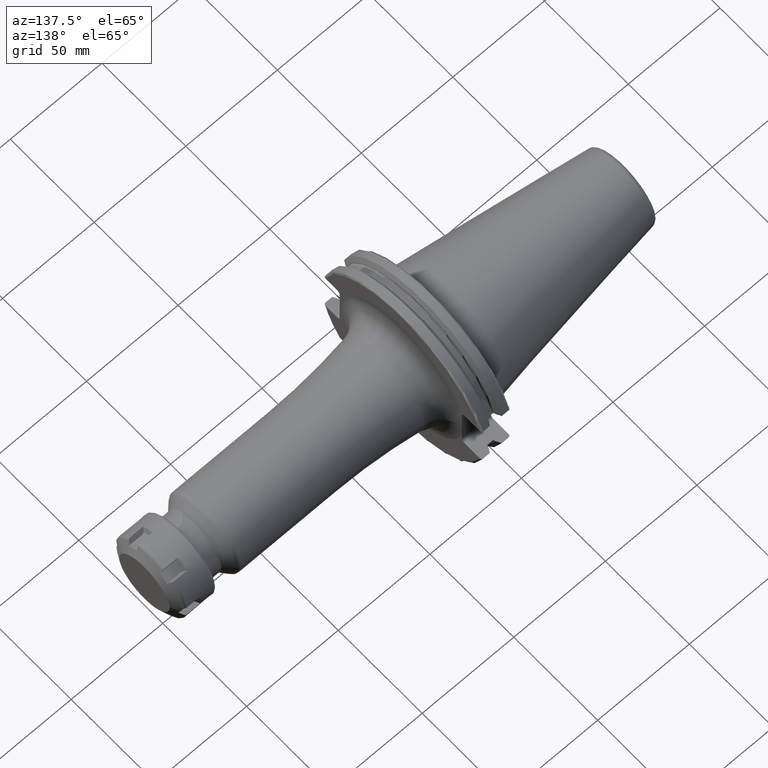
[diagram: clean part render]
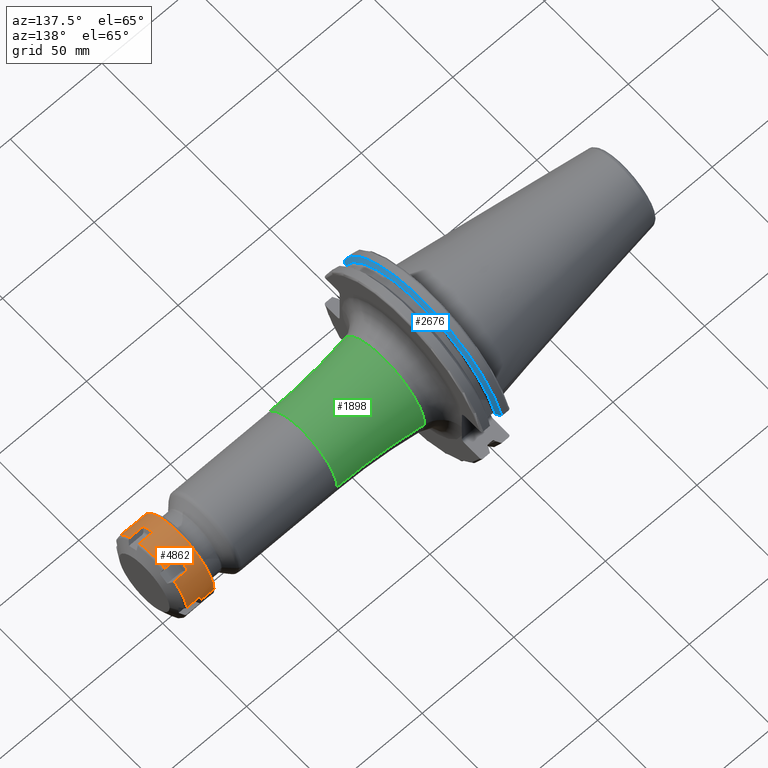
[diagram: same view with three faces highlighted in distinct colors, each labeled with its STEP entity id]
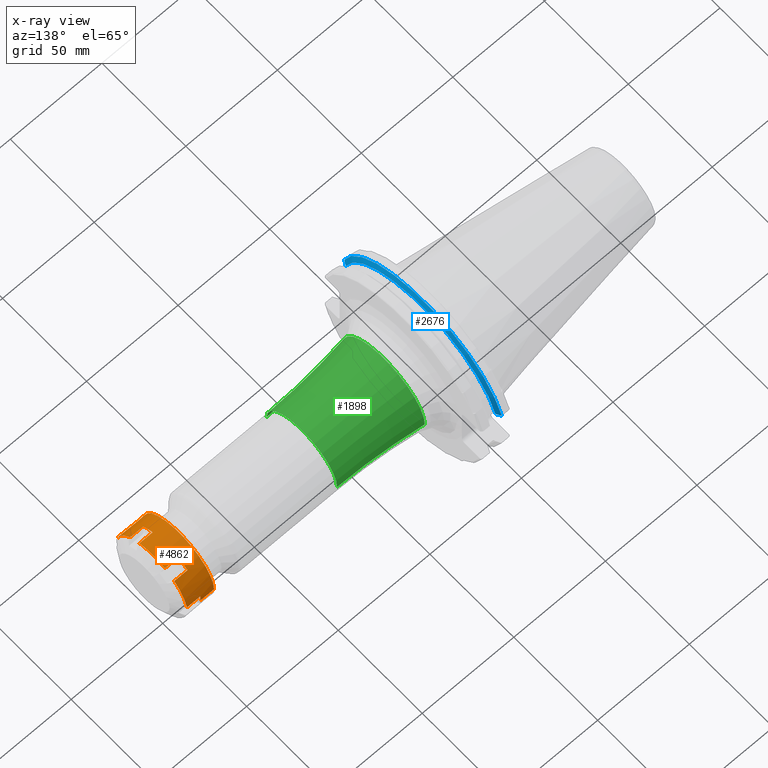
[diagram: x-ray of the same camera — body ghosted, the three highlighted faces saturated]
A machine part, auxiliary view with three faces highlighted in distinct colors.
The next image is the same camera in x-ray (body ghosted, the three faces saturated) — at least one of them is partly hidden behind the body in this view.
Their STEP definitions:

[orange] entity #4862 — the highlighted cylindrical surface (partial cylindrical patch) has radius 21 mm, axis along (1, 0, 0).
#3496=CARTESIAN_POINT('',(1.581421054838E1,1.317189611779E1,1.635546247167E1));
#3513=CARTESIAN_POINT('',(1.581421054838E1,2.075019405E1,3.229465418179E0));
#3515=CARTESIAN_POINT('',(1.581421054838E1,-7.578297932215E0,1.958492788985E1));
#3535=CARTESIAN_POINT('',(1.581421054838E1,7.578297932215E0,1.958492788985E1));
#3537=CARTESIAN_POINT('',(1.581421054838E1,-2.075019405E1,3.229465418179E0));
#3557=CARTESIAN_POINT('',(1.581421054838E1,-1.317189611779E1,1.635546247167E1));
#3630=DIRECTION('',(9.999999999998E-1,-6.709444935676E-7,-9.098410445458E-8));
#3631=VECTOR('',#3630,7.214212575504E0);
#3632=CARTESIAN_POINT('',(8.599997972873E0,1.317190095812E1,1.635546312805E1));
#3633=LINE('',#3632,#3631);
#3646=DIRECTION('',(-1.E0,0.E0,0.E0));
#3647=VECTOR('',#3646,7.214210815093E0);
#3648=CARTESIAN_POINT('',(1.581421054838E1,7.578297932215E0,1.958492788985E1));
#3649=LINE('',#3648,#3647);
#3755=DIRECTION('',(1.E0,0.E0,0.E0));
#3756=VECTOR('',#3755,7.214210548375E0);
#3757=CARTESIAN_POINT('',(8.6E0,-2.075019405E1,3.229465418179E0));
#3758=LINE('',#3757,#3756);
#3796=DIRECTION('',(-1.E0,9.411549393136E-12,6.000804948597E-11));
#3797=VECTOR('',#3796,7.350000000040E0);
#3798=CARTESIAN_POINT('',(8.600000000040E0,2.099999999993E1,
-4.377820052165E-10));
#3799=LINE('',#3798,#3797);
#3805=DIRECTION('',(-1.E0,-9.436200875805E-12,-6.000654573246E-11));
#3806=VECTOR('',#3805,7.350000000040E0);
#3807=CARTESIAN_POINT('',(8.600000000040E0,-2.099999999993E1,
4.377679851591E-10));
#3808=LINE('',#3807,#3806);
#3876=DIRECTION('',(-1.E0,1.969841969528E-14,0.E0));
#3877=VECTOR('',#3876,7.214210548375E0);
#3878=CARTESIAN_POINT('',(1.581421054838E1,2.075019405E1,3.229465418179E0));
#3879=LINE('',#3878,#3877);
#3891=CARTESIAN_POINT('',(8.6E0,0.E0,0.E0));
#3892=DIRECTION('',(-1.E0,0.E0,0.E0));
#3893=DIRECTION('',(0.E0,-1.E0,0.E0));
#3894=AXIS2_PLACEMENT_3D('',#3891,#3892,#3893);
#3896=CARTESIAN_POINT('',(1.25E0,0.E0,0.E0));
#3897=DIRECTION('',(-1.E0,0.E0,0.E0));
#3898=DIRECTION('',(0.E0,-1.E0,0.E0));
#3899=AXIS2_PLACEMENT_3D('',#3896,#3897,#3898);
#3901=CARTESIAN_POINT('',(8.6E0,0.E0,0.E0));
#3902=DIRECTION('',(-1.E0,0.E0,0.E0));
#3903=DIRECTION('',(0.E0,9.881044785716E-1,1.537840675323E-1));
#3904=AXIS2_PLACEMENT_3D('',#3901,#3902,#3903);
#3906=CARTESIAN_POINT('',(1.581421054838E1,-1.792614389339E-14,0.E0));
#3907=DIRECTION('',(-1.E0,0.E0,0.E0));
#3908=DIRECTION('',(0.E0,6.272331484661E-1,7.788315462700E-1));
#3909=AXIS2_PLACEMENT_3D('',#3906,#3907,#3908);
#3911=CARTESIAN_POINT('',(1.581421054838E1,-1.792614389339E-14,0.E0));
#3912=DIRECTION('',(-1.E0,0.E0,0.E0));
#3913=DIRECTION('',(0.E0,-3.608713301055E-1,9.326156138023E-1));
#3914=AXIS2_PLACEMENT_3D('',#3911,#3912,#3913);
#3916=CARTESIAN_POINT('',(1.581421054838E1,-1.792614389339E-14,0.E0));
#3917=DIRECTION('',(-1.E0,0.E0,0.E0));
#3918=DIRECTION('',(0.E0,-9.881044785716E-1,1.537840675323E-1));
#3919=AXIS2_PLACEMENT_3D('',#3916,#3917,#3918);
#3995=CARTESIAN_POINT('',(8.600000222181E0,7.035000558750E-6,
1.879731957107E-6));
#3996=DIRECTION('',(-1.E0,0.E0,0.E0));
#3997=DIRECTION('',(0.E0,3.608710688571E-1,9.326157148911E-1));
#3998=AXIS2_PLACEMENT_3D('',#3995,#3996,#3997);
#4014=DIRECTION('',(9.999999999979E-1,-1.452794314702E-6,1.445246590338E-6));
#4015=VECTOR('',#4014,7.214202484701E0);
#4016=CARTESIAN_POINT('',(8.600008063689E0,-7.578287451463E0,1.958491746355E1));
#4017=LINE('',#4016,#4015);
#4030=DIRECTION('',(-1.E0,0.E0,0.E0));
#4031=VECTOR('',#4030,7.214210890546E0);
#4032=CARTESIAN_POINT('',(1.581421054838E1,-1.317189611779E1,1.635546247167E1));
#4033=LINE('',#4032,#4031);
#4066=CARTESIAN_POINT('',(8.600000318507E0,1.804967964893E-5,
-1.352930521446E-5));
#4067=DIRECTION('',(-1.E0,0.E0,0.E0));
#4068=DIRECTION('',(0.E0,-6.272333551021E-1,7.788313798553E-1));
#4069=AXIS2_PLACEMENT_3D('',#4066,#4067,#4068);
#4153=CARTESIAN_POINT('',(1.25E0,2.1E1,0.E0));
#4154=CARTESIAN_POINT('',(1.25E0,-2.1E1,0.E0));
#4155=VERTEX_POINT('',#4153);
#4156=VERTEX_POINT('',#4154);
#4162=VERTEX_POINT('',#3513);
#4164=CARTESIAN_POINT('',(8.6E0,2.1E1,0.E0));
#4166=VERTEX_POINT('',#4164);
#4168=CARTESIAN_POINT('',(8.6E0,2.075019405E1,3.229465418179E0));
#4169=VERTEX_POINT('',#4168);
#4178=VERTEX_POINT('',#3496);
#4179=VERTEX_POINT('',#3535);
#4180=CARTESIAN_POINT('',(8.600000222181E0,7.578297626635E0,1.958492710012E1));
#4181=CARTESIAN_POINT('',(8.600000222181E0,1.317189658068E1,1.635546304645E1));
#4182=VERTEX_POINT('',#4180);
#4183=VERTEX_POINT('',#4181);
#4192=VERTEX_POINT('',#3515);
#4193=VERTEX_POINT('',#3557);
#4194=CARTESIAN_POINT('',(8.600000318507E0,-1.317189540004E1,1.635546158045E1));
#4195=CARTESIAN_POINT('',(8.600000318507E0,-7.578298503418E0,1.958492936603E1));
#4196=VERTEX_POINT('',#4194);
#4197=VERTEX_POINT('',#4195);
#4207=VERTEX_POINT('',#3537);
#4209=CARTESIAN_POINT('',(8.6E0,-2.1E1,0.E0));
#4210=CARTESIAN_POINT('',(8.6E0,-2.075019405E1,3.229465418179E0));
#4211=VERTEX_POINT('',#4209);
#4212=VERTEX_POINT('',#4210);
#4832=CARTESIAN_POINT('',(-1.E0,0.E0,0.E0));
#4833=DIRECTION('',(1.E0,0.E0,0.E0));
#4834=DIRECTION('',(0.E0,-1.E0,0.E0));
#4835=AXIS2_PLACEMENT_3D('',#4832,#4833,#4834);
#4836=CYLINDRICAL_SURFACE('',#4835,2.1E1);
#4838=ORIENTED_EDGE('',*,*,#4837,.F.);
#4839=ORIENTED_EDGE('',*,*,#4721,.T.);
#4841=ORIENTED_EDGE('',*,*,#4840,.T.);
#4842=ORIENTED_EDGE('',*,*,#4717,.F.);
#4844=ORIENTED_EDGE('',*,*,#4843,.F.);
#4845=ORIENTED_EDGE('',*,*,#4812,.F.);
#4846=ORIENTED_EDGE('',*,*,#4409,.F.);
#4847=ORIENTED_EDGE('',*,*,#4502,.F.);
#4849=ORIENTED_EDGE('',*,*,#4848,.F.);
#4850=ORIENTED_EDGE('',*,*,#4570,.F.);
#4851=ORIENTED_EDGE('',*,*,#4425,.F.);
#4853=ORIENTED_EDGE('',*,*,#4852,.F.);
#4855=ORIENTED_EDGE('',*,*,#4854,.F.);
#4857=ORIENTED_EDGE('',*,*,#4856,.F.);
#4858=ORIENTED_EDGE('',*,*,#4441,.F.);
#4859=ORIENTED_EDGE('',*,*,#4630,.F.);
#4860=EDGE_LOOP('',(#4838,#4839,#4841,#4842,#4844,#4845,#4846,#4847,#4849,#4850,
#4851,#4853,#4855,#4857,#4858,#4859));
#4861=FACE_OUTER_BOUND('',#4860,.F.);
#4862=ADVANCED_FACE('',(#4861),#4836,.T.);
#3895=CIRCLE('',#3894,2.1E1);
#3900=CIRCLE('',#3899,2.1E1);
#3905=CIRCLE('',#3904,2.1E1);
#3910=CIRCLE('',#3909,2.1E1);
#3915=CIRCLE('',#3914,2.1E1);
#3920=CIRCLE('',#3919,2.1E1);
#3999=CIRCLE('',#3998,2.099999486142E1);
#4070=CIRCLE('',#4069,2.100002071410E1);
#4409=EDGE_CURVE('',#4178,#4162,#3910,.T.);
#4425=EDGE_CURVE('',#4192,#4179,#3915,.T.);
#4441=EDGE_CURVE('',#4207,#4193,#3920,.T.);
#4502=EDGE_CURVE('',#4183,#4178,#3633,.T.);
#4570=EDGE_CURVE('',#4179,#4182,#3649,.T.);
#4630=EDGE_CURVE('',#4212,#4207,#3758,.T.);
#4717=EDGE_CURVE('',#4166,#4155,#3799,.T.);
#4721=EDGE_CURVE('',#4211,#4156,#3808,.T.);
#4812=EDGE_CURVE('',#4162,#4169,#3879,.T.);
#4837=EDGE_CURVE('',#4211,#4212,#3895,.T.);
#4840=EDGE_CURVE('',#4156,#4155,#3900,.T.);
#4843=EDGE_CURVE('',#4169,#4166,#3905,.T.);
#4848=EDGE_CURVE('',#4182,#4183,#3999,.T.);
#4852=EDGE_CURVE('',#4197,#4192,#4017,.T.);
#4854=EDGE_CURVE('',#4196,#4197,#4070,.T.);
#4856=EDGE_CURVE('',#4193,#4196,#4033,.T.);

[blue] entity #2676 — the highlighted conical surface has half-angle 60 deg.
#693=CARTESIAN_POINT('',(9.2625E0,0.E0,0.E0));
#694=DIRECTION('',(1.E0,0.E0,0.E0));
#695=DIRECTION('',(0.E0,9.606411165078E-1,2.777924499957E-1));
#696=AXIS2_PLACEMENT_3D('',#693,#694,#695);
#769=CARTESIAN_POINT('',(7.934621614173E0,0.E0,0.E0));
#770=DIRECTION('',(1.E0,0.E0,0.E0));
#771=DIRECTION('',(0.E0,9.643354064066E-1,2.646832521159E-1));
#772=AXIS2_PLACEMENT_3D('',#769,#770,#771);
#796=CARTESIAN_POINT('',(7.934621614173E0,4.699929686974E1,1.29E1));
#797=CARTESIAN_POINT('',(8.085480915039E0,4.672833723043E1,1.29E1));
#798=CARTESIAN_POINT('',(8.384988643814E0,4.619006057422E1,1.29E1));
#799=CARTESIAN_POINT('',(8.827579780447E0,4.539363402665E1,1.29E1));
#800=CARTESIAN_POINT('',(9.118260754177E0,4.486988275438E1,1.29E1));
#801=CARTESIAN_POINT('',(9.2625E0,4.460981716077E1,1.29E1));
#803=CARTESIAN_POINT('',(9.2625E0,-4.460981716077E1,1.29E1));
#804=CARTESIAN_POINT('',(9.118283773553E0,-4.486984125009E1,1.29E1));
#805=CARTESIAN_POINT('',(8.827633549554E0,-4.539353719098E1,1.29E1));
#806=CARTESIAN_POINT('',(8.385043355543E0,-4.618996220278E1,1.29E1));
#807=CARTESIAN_POINT('',(8.085504386120E0,-4.672829507383E1,1.29E1));
#808=CARTESIAN_POINT('',(7.934621614173E0,-4.699929686974E1,1.29E1));
#1428=CARTESIAN_POINT('',(9.2625E0,4.460981716077E1,1.29E1));
#1430=VERTEX_POINT('',#1428);
#1440=CARTESIAN_POINT('',(9.2625E0,-4.460981716077E1,1.29E1));
#1442=VERTEX_POINT('',#1440);
#1466=VERTEX_POINT('',#796);
#1467=VERTEX_POINT('',#808);
#2665=CARTESIAN_POINT('',(8.598560807087E0,0.E0,0.E0));
#2666=DIRECTION('',(-1.E0,0.E0,0.E0));
#2667=DIRECTION('',(0.E0,1.E0,0.E0));
#2668=AXIS2_PLACEMENT_3D('',#2665,#2666,#2667);
#2669=CONICAL_SURFACE('',#2668,4.758752358474E1,6.E1);
#2670=ORIENTED_EDGE('',*,*,#2603,.T.);
#2671=ORIENTED_EDGE('',*,*,#2549,.T.);
#2672=ORIENTED_EDGE('',*,*,#2235,.T.);
#2673=ORIENTED_EDGE('',*,*,#2644,.F.);
#2674=EDGE_LOOP('',(#2670,#2671,#2672,#2673));
#2675=FACE_OUTER_BOUND('',#2674,.F.);
#2676=ADVANCED_FACE('',(#2675),#2669,.T.);
#697=CIRCLE('',#696,4.643754716948E1);
#773=CIRCLE('',#772,4.87375E1);
#802=B_SPLINE_CURVE_WITH_KNOTS('',3,(#796,#797,#798,#799,#800,#801),
.UNSPECIFIED.,.F.,.F.,(4,1,1,4),(0.E0,3.333333333333E-1,6.666666666667E-1,1.E0),
.UNSPECIFIED.);
#809=B_SPLINE_CURVE_WITH_KNOTS('',3,(#803,#804,#805,#806,#807,#808),
.UNSPECIFIED.,.F.,.F.,(4,1,1,4),(0.E0,3.333333333333E-1,6.666666666667E-1,1.E0),
.UNSPECIFIED.);
#2235=EDGE_CURVE('',#1442,#1467,#809,.T.);
#2549=EDGE_CURVE('',#1430,#1442,#697,.T.);
#2603=EDGE_CURVE('',#1466,#1430,#802,.T.);
#2644=EDGE_CURVE('',#1466,#1467,#773,.T.);

[green] entity #1898 — the highlighted toroidal blend (fillet) surface has major radius 321 mm and minor (blend) radius 300 mm.
#200=CARTESIAN_POINT('',(2.925833333333E1,0.E0,0.E0));
#201=DIRECTION('',(1.E0,0.E0,0.E0));
#202=DIRECTION('',(0.E0,1.E0,0.E0));
#203=AXIS2_PLACEMENT_3D('',#200,#201,#202);
#210=CARTESIAN_POINT('',(7.405E1,-3.21E2,-7.862232450526E-14));
#211=DIRECTION('',(0.E0,0.E0,1.E0));
#212=DIRECTION('',(0.E0,1.E0,0.E0));
#213=AXIS2_PLACEMENT_3D('',#210,#211,#212);
#215=CARTESIAN_POINT('',(7.405E1,3.21E2,3.931116225263E-14));
#216=DIRECTION('',(0.E0,0.E0,-1.E0));
#217=DIRECTION('',(0.E0,-1.E0,0.E0));
#218=AXIS2_PLACEMENT_3D('',#215,#216,#217);
#238=CARTESIAN_POINT('',(7.405E1,0.E0,0.E0));
#239=DIRECTION('',(1.E0,0.E0,0.E0));
#240=DIRECTION('',(0.E0,1.E0,0.E0));
#241=AXIS2_PLACEMENT_3D('',#238,#239,#240);
#1605=CARTESIAN_POINT('',(2.925833333333E1,-2.436266823405E1,0.E0));
#1606=CARTESIAN_POINT('',(2.925833333333E1,2.436266823405E1,0.E0));
#1607=VERTEX_POINT('',#1605);
#1608=VERTEX_POINT('',#1606);
#1611=CARTESIAN_POINT('',(7.405E1,2.1E1,0.E0));
#1612=VERTEX_POINT('',#1611);
#1613=CARTESIAN_POINT('',(7.405E1,-2.1E1,0.E0));
#1614=VERTEX_POINT('',#1613);
#1884=CARTESIAN_POINT('',(7.405E1,0.E0,0.E0));
#1885=DIRECTION('',(1.E0,0.E0,0.E0));
#1886=DIRECTION('',(0.E0,-1.E0,0.E0));
#1887=AXIS2_PLACEMENT_3D('',#1884,#1885,#1886);
#1888=TOROIDAL_SURFACE('',#1887,3.21E2,3.E2);
#1889=ORIENTED_EDGE('',*,*,#1875,.F.);
#1891=ORIENTED_EDGE('',*,*,#1890,.F.);
#1893=ORIENTED_EDGE('',*,*,#1892,.T.);
#1895=ORIENTED_EDGE('',*,*,#1894,.T.);
#1896=EDGE_LOOP('',(#1889,#1891,#1893,#1895));
#1897=FACE_OUTER_BOUND('',#1896,.F.);
#1898=ADVANCED_FACE('',(#1897),#1888,.F.);
#204=CIRCLE('',#203,2.436266823405E1);
#214=CIRCLE('',#213,3.E2);
#219=CIRCLE('',#218,3.E2);
#242=CIRCLE('',#241,2.1E1);
#1875=EDGE_CURVE('',#1608,#1607,#204,.T.);
#1890=EDGE_CURVE('',#1612,#1608,#219,.T.);
#1892=EDGE_CURVE('',#1612,#1614,#242,.T.);
#1894=EDGE_CURVE('',#1614,#1607,#214,.T.);